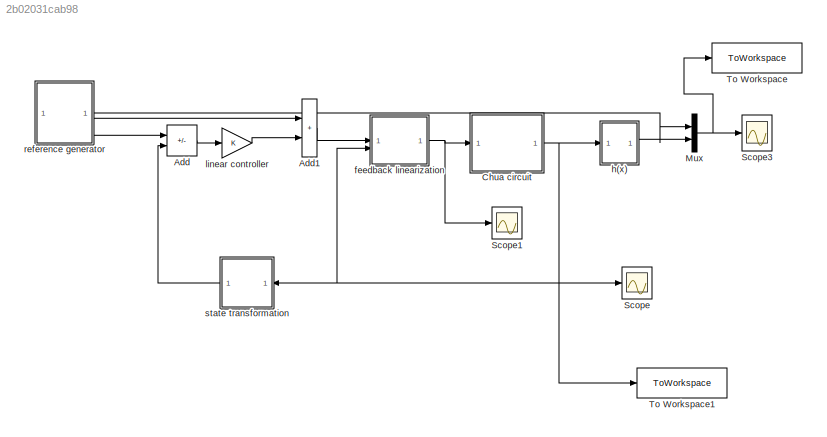
MODEL slx_2b02031cab98
KIND model
CONFIG AbsTol = auto
CONFIG EnableMultiTasking = off
CONFIG FixedStep = auto
CONFIG MaxStep = auto
CONFIG MinStep = auto
CONFIG RelTol = 1e-3
CONFIG SampleTimeConstraint = Unconstrained
CONFIG SolverName = VariableStepAuto
CONFIG StartTime = 0.0
CONFIG StopTime = tfin
BLOCK [Sum] Add
  IconShape = rectangular
  Inputs = +-
BLOCK [Sum] Add1
  IconShape = rectangular
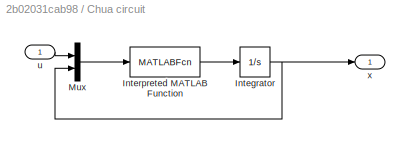
BLOCK [SubSystem] Chua circuit
BLOCK [Integrator] Chua circuit/Integrator
  InitialCondition = x0
BLOCK [MATLABFcn] Chua circuit/Interpreted MATLAB Function
  MATLABFcn = fg_chua(u)
BLOCK [Mux] Chua circuit/Mux
  DisplayOption = bar
  Inputs = 2
BLOCK [Inport] Chua circuit/u
BLOCK [Outport] Chua circuit/x
  VectorParamsAs1DForOutWhenUnconnected = off
BLOCK [Mux] Mux
  DisplayOption = bar
  Inputs = 2
BLOCK [Scope] Scope
  Floating = off
  NumInputPorts = 1
  ScopeSpecificationString = Simulink.scopes.TimeScopeBlockCfg('CurrentConfiguration', extmgr.ConfigurationSet(extmgr.Configuration('Core','General UI',true),extmgr.Configuration('Core','Source UI',true),extmgr.Configuration('Sources','WiredSimulink',true,'DataLoggingVariableName','ScopeData1'),extmgr.Configuration('Visuals','Time Domain',true,'SerializedDisplays',{struct('MinYLimReal','-14.49442','MaxYLimReal','128.18925','Y...<+1489ch>
BLOCK [Scope] Scope1
  Floating = off
  NumInputPorts = 1
  ScopeSpecificationString = Simulink.scopes.TimeScopeBlockCfg('CurrentConfiguration', extmgr.ConfigurationSet(extmgr.Configuration('Core','General UI',true),extmgr.Configuration('Core','Source UI',true),extmgr.Configuration('Sources','WiredSimulink',true,'DataLoggingVariableName','ScopeData2'),extmgr.Configuration('Visuals','Time Domain',true,'SerializedDisplays',{struct('MinYLimReal','-129.44391','MaxYLimReal','14.59633','Y...<+1465ch>
BLOCK [Scope] Scope3
  Floating = off
  NumInputPorts = 1
  ScopeSpecificationString = Simulink.scopes.TimeScopeBlockCfg('CurrentConfiguration', extmgr.ConfigurationSet(extmgr.Configuration('Core','General UI',true),extmgr.Configuration('Core','Source UI',true),extmgr.Configuration('Sources','WiredSimulink',true),extmgr.Configuration('Visuals','Time Domain',true,'SerializedDisplays',{struct('MinYLimReal','-1.00000','MaxYLimReal','9.00000','YLabelReal','','MinYLimMag','0.00000','MaxY...<+1447ch>
BLOCK [ToWorkspace] To Workspace
  FixptAsFi = on
  MaxDataPoints = inf
  SampleTime = -1
  SaveFormat = Timeseries
  VariableName = resulting
BLOCK [ToWorkspace] To Workspace1
  FixptAsFi = on
  MaxDataPoints = inf
  SampleTime = -1
  SaveFormat = Timeseries
  VariableName = stateres
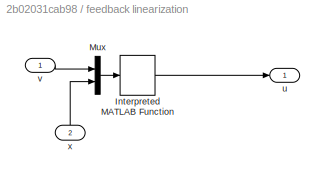
BLOCK [SubSystem] feedback linearization
BLOCK [MATLABFcn] feedback linearization/Interpreted MATLAB Function
  MATLABFcn = u_chua(u)
  OutputSignalType = real
BLOCK [Mux] feedback linearization/Mux
  DisplayOption = bar
  Inputs = 2
BLOCK [Outport] feedback linearization/u
  VectorParamsAs1DForOutWhenUnconnected = off
BLOCK [Inport] feedback linearization/v
BLOCK [Inport] feedback linearization/x
  NameLocation = right
  Port = 2
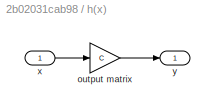
BLOCK [SubSystem] h(x)
BLOCK [Gain] h(x)/output matrix
  Gain = C
  Multiplication = Matrix(K*u)
BLOCK [Inport] h(x)/x
BLOCK [Outport] h(x)/y
  VectorParamsAs1DForOutWhenUnconnected = off
BLOCK [Gain] linear controller
  Gain = K
  Multiplication = Matrix(K*u)
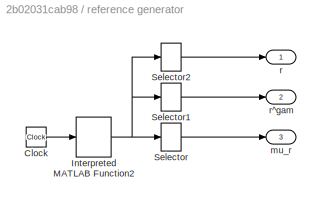
BLOCK [SubSystem] reference generator
BLOCK [Clock] reference generator/Clock
BLOCK [MATLABFcn] reference generator/Interpreted MATLAB Function2
  MATLABFcn = ref_chua(u)
BLOCK [Selector] reference generator/Selector
  IndexOptions = Index vector (dialog)
  Indices = 1:ga
  InputPortWidth = ga+1
  OutputSizes = 1
BLOCK [Selector] reference generator/Selector1
  IndexOptions = Index vector (dialog)
  Indices = ga+1
  InputPortWidth = ga+1
  OutputSizes = 1
BLOCK [Selector] reference generator/Selector2
  IndexOptions = Index vector (dialog)
  Indices = 1
  InputPortWidth = ga+1
  OutputSizes = 1
BLOCK [Outport] reference generator/mu_r
  Port = 3
  VectorParamsAs1DForOutWhenUnconnected = off
BLOCK [Outport] reference generator/r
  VectorParamsAs1DForOutWhenUnconnected = off
BLOCK [Outport] reference generator/r^gam
  Port = 2
  VectorParamsAs1DForOutWhenUnconnected = off
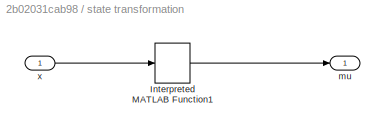
BLOCK [SubSystem] state transformation
BLOCK [MATLABFcn] state transformation/Interpreted MATLAB Function1
  MATLABFcn = mu_chua(u)
BLOCK [Outport] state transformation/mu
  VectorParamsAs1DForOutWhenUnconnected = off
BLOCK [Inport] state transformation/x
  NameLocation = top
LINE Add1:1 -> feedback linearization:1
LINE Add:1 -> linear controller:1
NET Chua circuit/Integrator:1 -> Chua circuit/Mux:2, Chua circuit/x:1
LINE Chua circuit/Interpreted MATLAB Function:1 -> Chua circuit/Integrator:1
LINE Chua circuit/Mux:1 -> Chua circuit/Interpreted MATLAB Function:1
LINE Chua circuit/u:1 -> Chua circuit/Mux:1
NET Chua circuit:1 -> Scope:1, To Workspace1:1, feedback linearization:2, h(x):1, state transformation:1
NET Mux:1 -> Scope3:1, To Workspace:1
LINE feedback linearization/Interpreted MATLAB Function:1 -> feedback linearization/u:1
LINE feedback linearization/Mux:1 -> feedback linearization/Interpreted MATLAB Function:1
LINE feedback linearization/v:1 -> feedback linearization/Mux:1
LINE feedback linearization/x:1 -> feedback linearization/Mux:2
NET feedback linearization:1 -> Chua circuit:1, Scope1:1
LINE h(x)/output matrix:1 -> h(x)/y:1
LINE h(x)/x:1 -> h(x)/output matrix:1
LINE h(x):1 -> Mux:2
LINE linear controller:1 -> Add1:2
LINE reference generator/Clock:1 -> reference generator/Interpreted MATLAB Function2:1
NET reference generator/Interpreted MATLAB Function2:1 -> reference generator/Selector1:1, reference generator/Selector2:1, reference generator/Selector:1
LINE reference generator/Selector1:1 -> reference generator/r^gam:1
LINE reference generator/Selector2:1 -> reference generator/r:1
LINE reference generator/Selector:1 -> reference generator/mu_r:1
LINE reference generator:1 -> Mux:1
LINE reference generator:2 -> Add1:1
LINE reference generator:3 -> Add:1
LINE state transformation/Interpreted MATLAB Function1:1 -> state transformation/mu:1
LINE state transformation/x:1 -> state transformation/Interpreted MATLAB Function1:1
LINE state transformation:1 -> Add:2
note: NET lines group one-source signal fan-out (src -> all destinations, sorted); 1:1 wires keep LINE
